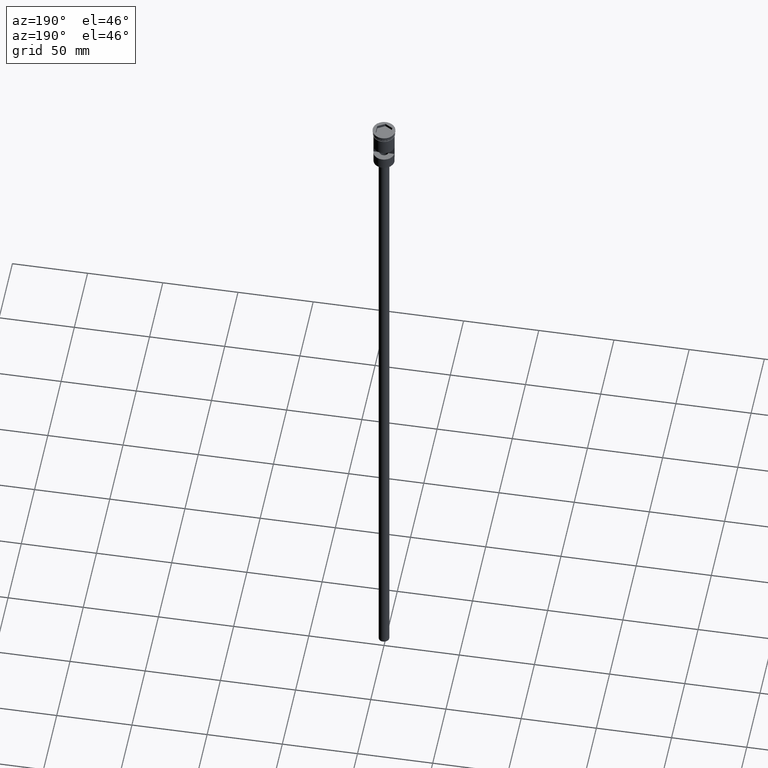
[diagram: clean part render]
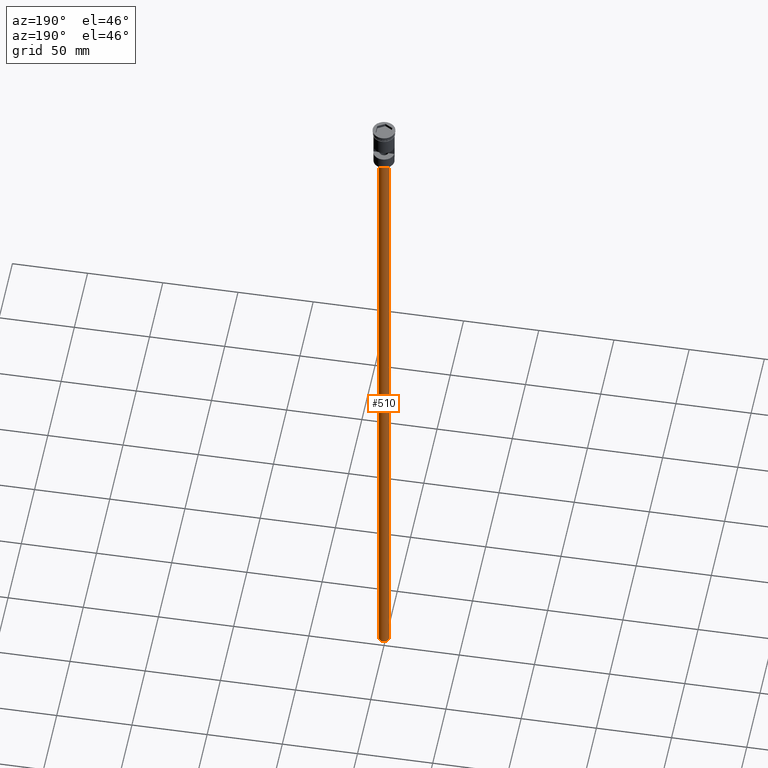
[diagram: same view with one face highlighted and labeled with its STEP entity id]
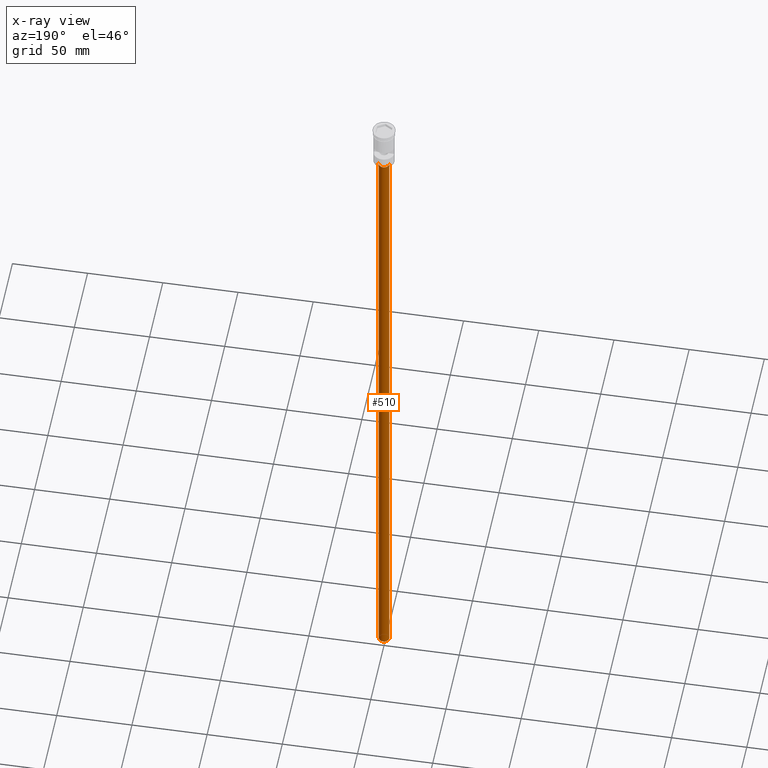
[diagram: x-ray of the same camera — body ghosted, the highlighted face saturated]
A machine part, auxiliary view. The second image highlights one B-rep face of the part: STEP entity #510.
The next image is the same camera in x-ray: the body ghosted, the highlighted face saturated — about 0% of this face is hidden behind the body in this view.
In plain terms, the highlighted cylindrical surface (edge-blend (fillet) strip) has radius 3.5 mm, axis along (-0, -0, 1).
Its self-contained STEP definition (entity closure, byte-faithful):
#58 = DIRECTION ( 'NONE',  ( -0.000000000000000000, -0.000000000000000000, 1.000000000000000000 ) ) ;
#64 = DIRECTION ( 'NONE',  ( 1.000000000000000000, 0.000000000000000000, 0.000000000000000000 ) ) ;
#75 = ORIENTED_EDGE ( 'NONE', *, *, #380, .T. ) ;
#121 = CARTESIAN_POINT ( 'NONE',  ( 3.500000000000000444, 0.000000000000000000, -31.50000000000000000 ) ) ;
#157 = VERTEX_POINT ( 'NONE', #835 ) ;
#174 = EDGE_CURVE ( 'NONE', #891, #1500, #214, .T. ) ;
#214 = LINE ( 'NONE', #714, #966 ) ;
#251 = CIRCLE ( 'NONE', #936, 3.500000000000000444 ) ;
#347 = ORIENTED_EDGE ( 'NONE', *, *, #174, .F. ) ;
#350 = DIRECTION ( 'NONE',  ( -1.000000000000000000, 0.000000000000000000, 0.000000000000000000 ) ) ;
#360 = AXIS2_PLACEMENT_3D ( 'NONE', #1418, #805, #64 ) ;
#380 = EDGE_CURVE ( 'NONE', #157, #579, #1182, .T. ) ;
#420 = ORIENTED_EDGE ( 'NONE', *, *, #893, .T. ) ;
#491 = CARTESIAN_POINT ( 'NONE',  ( 3.500000000000000444, 0.000000000000000000, -478.5000000000000568 ) ) ;
#510 = ADVANCED_FACE ( 'NONE', ( #557 ), #935, .T. ) ;
#557 = FACE_OUTER_BOUND ( 'NONE', #630, .T. ) ;
#579 = VERTEX_POINT ( 'NONE', #1239 ) ;
#625 = CIRCLE ( 'NONE', #749, 3.500000000000000444 ) ;
#630 = EDGE_LOOP ( 'NONE', ( #1533, #75, #420, #347 ) ) ;
#710 = DIRECTION ( 'NONE',  ( -1.000000000000000000, 0.000000000000000000, 0.000000000000000000 ) ) ;
#714 = CARTESIAN_POINT ( 'NONE',  ( 3.500000000000000444, 0.000000000000000000, -478.5000000000000568 ) ) ;
#749 = AXIS2_PLACEMENT_3D ( 'NONE', #1431, #817, #710 ) ;
#789 = CARTESIAN_POINT ( 'NONE',  ( -3.500000000000000444, 4.286263797015737088E-16, -478.5000000000000568 ) ) ;
#805 = DIRECTION ( 'NONE',  ( -0.000000000000000000, -0.000000000000000000, 1.000000000000000000 ) ) ;
#817 = DIRECTION ( 'NONE',  ( 0.000000000000000000, 0.000000000000000000, -1.000000000000000000 ) ) ;
#835 = CARTESIAN_POINT ( 'NONE',  ( -3.500000000000000444, 4.286263797015737088E-16, -478.5000000000000568 ) ) ;
#891 = VERTEX_POINT ( 'NONE', #491 ) ;
#893 = EDGE_CURVE ( 'NONE', #579, #1500, #625, .T. ) ;
#935 = CYLINDRICAL_SURFACE ( 'NONE', #360, 3.500000000000000444 ) ;
#936 = AXIS2_PLACEMENT_3D ( 'NONE', #1129, #1328, #350 ) ;
#966 = VECTOR ( 'NONE', #1210, 1000.000000000000000 ) ;
#1129 = CARTESIAN_POINT ( 'NONE',  ( 0.000000000000000000, 0.000000000000000000, -478.5000000000000568 ) ) ;
#1182 = LINE ( 'NONE', #789, #1365 ) ;
#1210 = DIRECTION ( 'NONE',  ( -0.000000000000000000, -0.000000000000000000, 1.000000000000000000 ) ) ;
#1239 = CARTESIAN_POINT ( 'NONE',  ( -3.500000000000000444, 4.286263797015737088E-16, -31.50000000000000000 ) ) ;
#1241 = EDGE_CURVE ( 'NONE', #157, #891, #251, .T. ) ;
#1328 = DIRECTION ( 'NONE',  ( 0.000000000000000000, 0.000000000000000000, -1.000000000000000000 ) ) ;
#1365 = VECTOR ( 'NONE', #58, 1000.000000000000000 ) ;
#1418 = CARTESIAN_POINT ( 'NONE',  ( 0.000000000000000000, 0.000000000000000000, -478.5000000000000568 ) ) ;
#1431 = CARTESIAN_POINT ( 'NONE',  ( 0.000000000000000000, 0.000000000000000000, -31.50000000000000000 ) ) ;
#1500 = VERTEX_POINT ( 'NONE', #121 ) ;
#1533 = ORIENTED_EDGE ( 'NONE', *, *, #1241, .F. ) ;